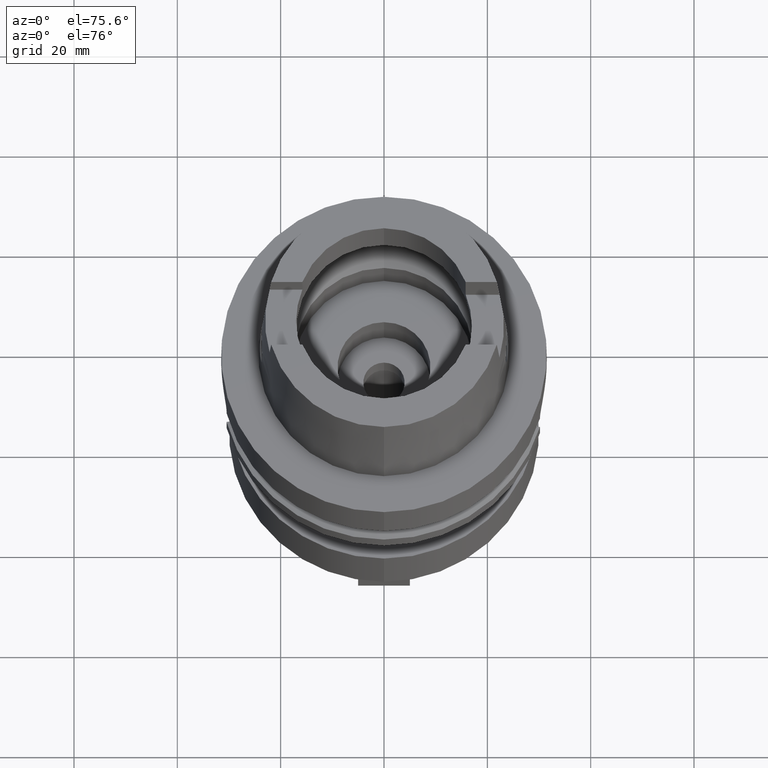
[diagram: clean part render]
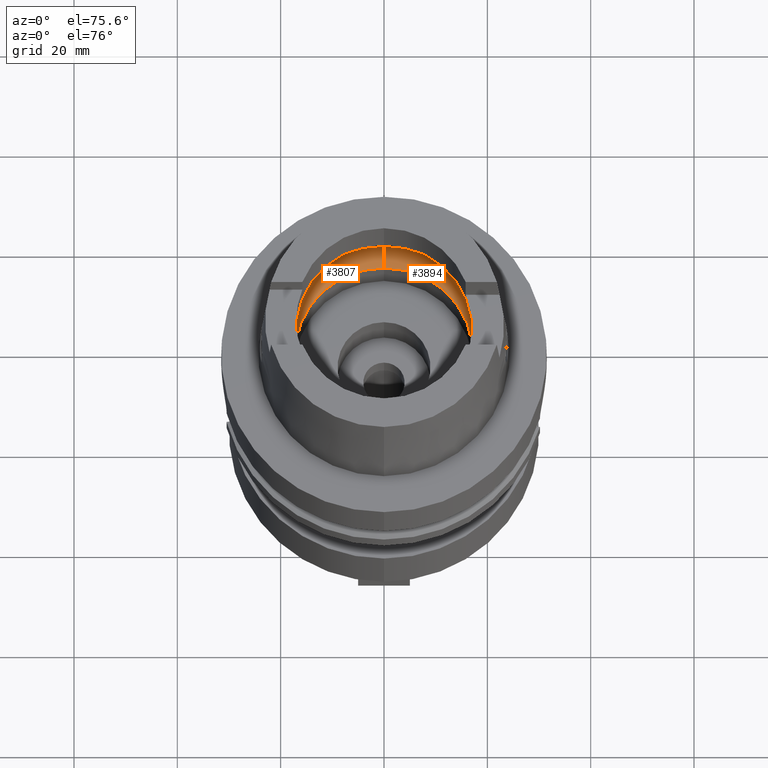
[diagram: same view with one multi-face feature highlighted, each face labeled with its STEP entity id]
A machine part, auxiliary view. The highlighted faces form ONE feature: a constant-radius fillet chain: 2 tangent blend faces with common blend radius 8 mm. The faces share edges in the B-rep.
Their STEP definitions:
[1] entity #3807 (Torus):
#1759=CARTESIAN_POINT('',(-1.984575864666E1,-2.479085262491E0,
6.186348233825E0));
#1760=CARTESIAN_POINT('',(-1.987370771882E1,-2.255345260874E0,
5.989212771894E0));
#1761=CARTESIAN_POINT('',(-1.991332895189E1,-1.758882382518E0,
5.646921041047E0));
#1762=CARTESIAN_POINT('',(-1.994018891292E1,-9.058447440112E-1,
5.323259319607E0));
#1763=CARTESIAN_POINT('',(-1.994501428476E1,-3.022092202537E-1,5.25E0));
#1764=CARTESIAN_POINT('',(-1.994501428476E1,0.E0,5.25E0));
#1769=CARTESIAN_POINT('',(-1.994501428476E1,0.E0,5.25E0));
#1770=CARTESIAN_POINT('',(-1.994501428476E1,3.022079959061E-1,5.25E0));
#1771=CARTESIAN_POINT('',(-1.994018898018E1,9.058420490936E-1,
5.323258465798E0));
#1772=CARTESIAN_POINT('',(-1.991332889140E1,1.758884038002E0,5.646921660838E0));
#1773=CARTESIAN_POINT('',(-1.987370764676E1,2.255345837801E0,5.989213280220E0));
#1774=CARTESIAN_POINT('',(-1.984575864666E1,2.479085262491E0,6.186348233825E0));
#1779=CARTESIAN_POINT('',(0.E0,0.E0,6.186348233825E0));
#1780=DIRECTION('',(0.E0,0.E0,-1.E0));
#1781=DIRECTION('',(-9.922879323328E-1,1.239542631245E-1,0.E0));
#1782=AXIS2_PLACEMENT_3D('',#1779,#1780,#1781);
#1787=CARTESIAN_POINT('',(0.E0,0.E0,1.500000000001E-1));
#1788=DIRECTION('',(0.E0,0.E0,1.E0));
#1789=DIRECTION('',(0.E0,1.E0,0.E0));
#1790=AXIS2_PLACEMENT_3D('',#1787,#1788,#1789);
#1795=CARTESIAN_POINT('',(0.E0,-1.2E1,6.186348233825E0));
#1796=DIRECTION('',(-1.E0,0.E0,0.E0));
#1797=DIRECTION('',(0.E0,-6.5625E-1,-7.545435292281E-1));
#1798=AXIS2_PLACEMENT_3D('',#1795,#1796,#1797);
#1803=CARTESIAN_POINT('',(0.E0,0.E0,6.186348233825E0));
#1804=DIRECTION('',(0.E0,0.E0,-1.E0));
#1805=DIRECTION('',(0.E0,-1.E0,0.E0));
#1806=AXIS2_PLACEMENT_3D('',#1803,#1804,#1805);
#1830=CARTESIAN_POINT('',(-1.984575864666E1,-2.479085262491E0,
6.186348233825E0));
#1933=CARTESIAN_POINT('',(0.E0,1.2E1,6.186348233825E0));
#1934=DIRECTION('',(1.E0,0.E0,0.E0));
#1935=DIRECTION('',(0.E0,6.5625E-1,-7.545435292281E-1));
#1936=AXIS2_PLACEMENT_3D('',#1933,#1934,#1935);
#2214=VERTEX_POINT('',#1830);
#2215=CARTESIAN_POINT('',(0.E0,-2.E1,6.186348233825E0));
#2216=VERTEX_POINT('',#2215);
#2217=CARTESIAN_POINT('',(0.E0,2.E1,6.186348233825E0));
#2218=VERTEX_POINT('',#2217);
#2219=CARTESIAN_POINT('',(-1.984575864666E1,2.479085262490E0,6.186348233825E0));
#2220=VERTEX_POINT('',#2219);
#2221=CARTESIAN_POINT('',(-1.994501428476E1,0.E0,5.25E0));
#2222=VERTEX_POINT('',#2221);
#2227=CARTESIAN_POINT('',(0.E0,1.725E1,1.500000000001E-1));
#2228=VERTEX_POINT('',#2227);
#2229=CARTESIAN_POINT('',(0.E0,-1.725E1,1.500000000001E-1));
#2230=VERTEX_POINT('',#2229);
#3787=CARTESIAN_POINT('',(0.E0,0.E0,6.186348233825E0));
#3788=DIRECTION('',(0.E0,0.E0,1.E0));
#3789=DIRECTION('',(0.E0,1.E0,0.E0));
#3790=AXIS2_PLACEMENT_3D('',#3787,#3788,#3789);
#3791=TOROIDAL_SURFACE('',#3790,1.2E1,8.E0);
#3793=ORIENTED_EDGE('',*,*,#3792,.T.);
#3795=ORIENTED_EDGE('',*,*,#3794,.T.);
#3797=ORIENTED_EDGE('',*,*,#3796,.T.);
#3799=ORIENTED_EDGE('',*,*,#3798,.F.);
#3800=ORIENTED_EDGE('',*,*,#3782,.T.);
#3802=ORIENTED_EDGE('',*,*,#3801,.T.);
#3804=ORIENTED_EDGE('',*,*,#3803,.T.);
#3805=EDGE_LOOP('',(#3793,#3795,#3797,#3799,#3800,#3802,#3804));
#3806=FACE_OUTER_BOUND('',#3805,.F.);
#1765=B_SPLINE_CURVE_WITH_KNOTS('',3,(#1759,#1760,#1761,#1762,#1763,#1764),
.UNSPECIFIED.,.F.,.F.,(4,1,1,4),(0.E0,3.333333333333E-1,6.666666666667E-1,1.E0),
.UNSPECIFIED.);
#1775=B_SPLINE_CURVE_WITH_KNOTS('',3,(#1769,#1770,#1771,#1772,#1773,#1774),
.UNSPECIFIED.,.F.,.F.,(4,1,1,4),(0.E0,3.333333333333E-1,6.666666666667E-1,1.E0),
.UNSPECIFIED.);
#1783=CIRCLE('',#1782,2.E1);
#1791=CIRCLE('',#1790,1.725E1);
#1799=CIRCLE('',#1798,8.E0);
#1807=CIRCLE('',#1806,2.E1);
#1937=CIRCLE('',#1936,8.E0);
#3782=EDGE_CURVE('',#2228,#2230,#1791,.T.);
#3792=EDGE_CURVE('',#2214,#2222,#1765,.T.);
#3794=EDGE_CURVE('',#2222,#2220,#1775,.T.);
#3796=EDGE_CURVE('',#2220,#2218,#1783,.T.);
#3798=EDGE_CURVE('',#2228,#2218,#1937,.T.);
#3801=EDGE_CURVE('',#2230,#2216,#1799,.T.);
#3803=EDGE_CURVE('',#2216,#2214,#1807,.T.);
#3807=ADVANCED_FACE('',(#3806),#3791,.F.);
[2] entity #3894 (Torus):
#1795=CARTESIAN_POINT('',(0.E0,-1.2E1,6.186348233825E0));
#1796=DIRECTION('',(-1.E0,0.E0,0.E0));
#1797=DIRECTION('',(0.E0,-6.5625E-1,-7.545435292281E-1));
#1798=AXIS2_PLACEMENT_3D('',#1795,#1796,#1797);
#1859=CARTESIAN_POINT('',(1.984575864666E1,-2.479085262491E0,6.186348233825E0));
#1888=CARTESIAN_POINT('',(1.984575864666E1,2.479085262491E0,6.186348233825E0));
#1907=CARTESIAN_POINT('',(1.994501428476E1,0.E0,5.25E0));
#1908=CARTESIAN_POINT('',(1.994501428476E1,-3.022109186395E-1,5.25E0));
#1909=CARTESIAN_POINT('',(1.994018886112E1,-9.058486760300E-1,
5.323260138817E0));
#1910=CARTESIAN_POINT('',(1.991332874853E1,-1.758885968800E0,5.646923075843E0));
#1911=CARTESIAN_POINT('',(1.987370755586E1,-2.255346565443E0,5.989213921339E0));
#1912=CARTESIAN_POINT('',(1.984575864666E1,-2.479085262491E0,6.186348233825E0));
#1917=CARTESIAN_POINT('',(0.E0,0.E0,6.186348233825E0));
#1918=DIRECTION('',(0.E0,0.E0,-1.E0));
#1919=DIRECTION('',(9.922879323328E-1,-1.239542631245E-1,0.E0));
#1920=AXIS2_PLACEMENT_3D('',#1917,#1918,#1919);
#1925=CARTESIAN_POINT('',(0.E0,0.E0,1.500000000001E-1));
#1926=DIRECTION('',(0.E0,0.E0,1.E0));
#1927=DIRECTION('',(0.E0,-1.E0,0.E0));
#1928=AXIS2_PLACEMENT_3D('',#1925,#1926,#1927);
#1933=CARTESIAN_POINT('',(0.E0,1.2E1,6.186348233825E0));
#1934=DIRECTION('',(1.E0,0.E0,0.E0));
#1935=DIRECTION('',(0.E0,6.5625E-1,-7.545435292281E-1));
#1936=AXIS2_PLACEMENT_3D('',#1933,#1934,#1935);
#1941=CARTESIAN_POINT('',(0.E0,0.E0,6.186348233825E0));
#1942=DIRECTION('',(0.E0,0.E0,-1.E0));
#1943=DIRECTION('',(0.E0,1.E0,0.E0));
#1944=AXIS2_PLACEMENT_3D('',#1941,#1942,#1943);
#1949=CARTESIAN_POINT('',(1.984575864666E1,2.479085262491E0,6.186348233825E0));
#1950=CARTESIAN_POINT('',(1.987370781167E1,2.255344517609E0,5.989212117010E0));
#1951=CARTESIAN_POINT('',(1.991332909699E1,1.758880408516E0,5.646919602665E0));
#1952=CARTESIAN_POINT('',(1.994018903230E1,9.058380857037E-1,5.323257641096E0));
#1953=CARTESIAN_POINT('',(1.994501428476E1,3.022062841843E-1,5.25E0));
#1954=CARTESIAN_POINT('',(1.994501428476E1,0.E0,5.25E0));
#2215=CARTESIAN_POINT('',(0.E0,-2.E1,6.186348233825E0));
#2216=VERTEX_POINT('',#2215);
#2217=CARTESIAN_POINT('',(0.E0,2.E1,6.186348233825E0));
#2218=VERTEX_POINT('',#2217);
#2223=VERTEX_POINT('',#1859);
#2225=VERTEX_POINT('',#1907);
#2226=VERTEX_POINT('',#1888);
#2227=CARTESIAN_POINT('',(0.E0,1.725E1,1.500000000001E-1));
#2228=VERTEX_POINT('',#2227);
#2229=CARTESIAN_POINT('',(0.E0,-1.725E1,1.500000000001E-1));
#2230=VERTEX_POINT('',#2229);
#3879=CARTESIAN_POINT('',(0.E0,0.E0,6.186348233825E0));
#3880=DIRECTION('',(0.E0,0.E0,1.E0));
#3881=DIRECTION('',(0.E0,1.E0,0.E0));
#3882=AXIS2_PLACEMENT_3D('',#3879,#3880,#3881);
#3883=TOROIDAL_SURFACE('',#3882,1.2E1,8.E0);
#3884=ORIENTED_EDGE('',*,*,#3869,.T.);
#3885=ORIENTED_EDGE('',*,*,#3858,.T.);
#3886=ORIENTED_EDGE('',*,*,#3801,.F.);
#3887=ORIENTED_EDGE('',*,*,#3766,.T.);
#3888=ORIENTED_EDGE('',*,*,#3798,.T.);
#3889=ORIENTED_EDGE('',*,*,#3852,.T.);
#3891=ORIENTED_EDGE('',*,*,#3890,.T.);
#3892=EDGE_LOOP('',(#3884,#3885,#3886,#3887,#3888,#3889,#3891));
#3893=FACE_OUTER_BOUND('',#3892,.F.);
#1799=CIRCLE('',#1798,8.E0);
#1913=B_SPLINE_CURVE_WITH_KNOTS('',3,(#1907,#1908,#1909,#1910,#1911,#1912),
.UNSPECIFIED.,.F.,.F.,(4,1,1,4),(0.E0,3.333333333333E-1,6.666666666667E-1,1.E0),
.UNSPECIFIED.);
#1921=CIRCLE('',#1920,2.E1);
#1929=CIRCLE('',#1928,1.725E1);
#1937=CIRCLE('',#1936,8.E0);
#1945=CIRCLE('',#1944,2.E1);
#1955=B_SPLINE_CURVE_WITH_KNOTS('',3,(#1949,#1950,#1951,#1952,#1953,#1954),
.UNSPECIFIED.,.F.,.F.,(4,1,1,4),(0.E0,3.333333333333E-1,6.666666666667E-1,1.E0),
.UNSPECIFIED.);
#3766=EDGE_CURVE('',#2230,#2228,#1929,.T.);
#3798=EDGE_CURVE('',#2228,#2218,#1937,.T.);
#3801=EDGE_CURVE('',#2230,#2216,#1799,.T.);
#3852=EDGE_CURVE('',#2218,#2226,#1945,.T.);
#3858=EDGE_CURVE('',#2223,#2216,#1921,.T.);
#3869=EDGE_CURVE('',#2225,#2223,#1913,.T.);
#3890=EDGE_CURVE('',#2226,#2225,#1955,.T.);
#3894=ADVANCED_FACE('',(#3893),#3883,.F.);